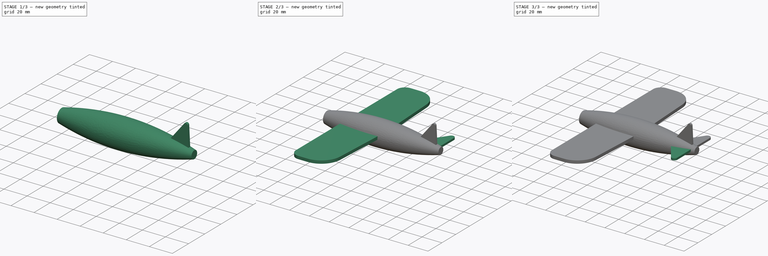
[diagram: build sequence overview — one tinted view per stage of 3, left to right]
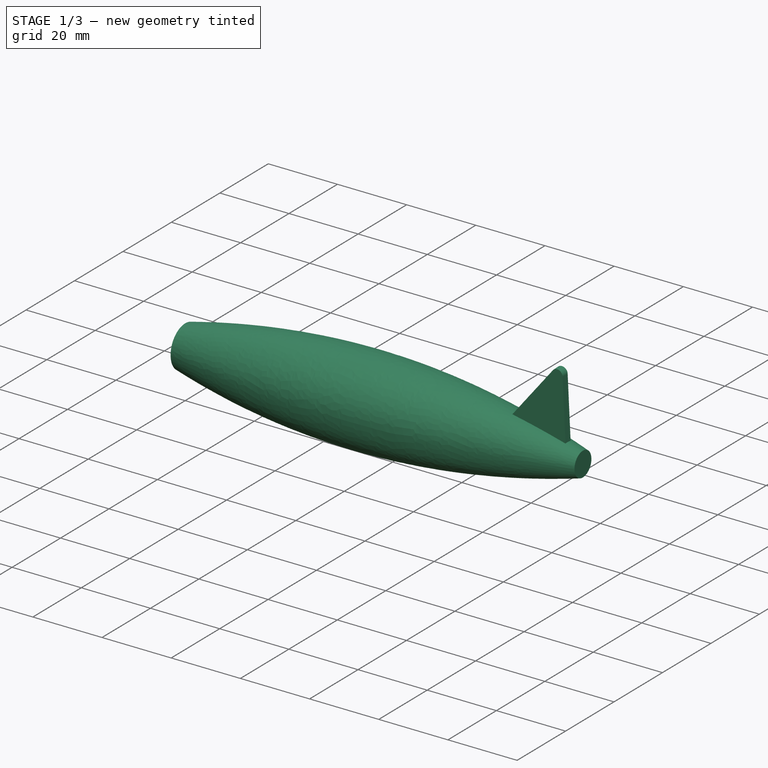
[diagram: stage 1 of 3 — iso view after this stage's code; geometry added in this stage tinted green]
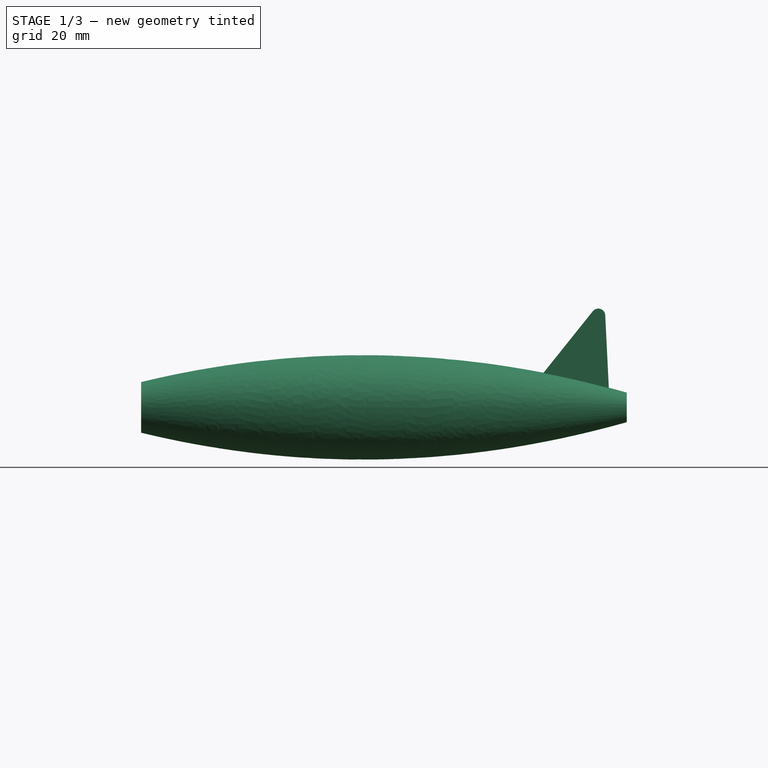
[diagram: stage 1 of 3 — front view after this stage's code; geometry added in this stage tinted green]
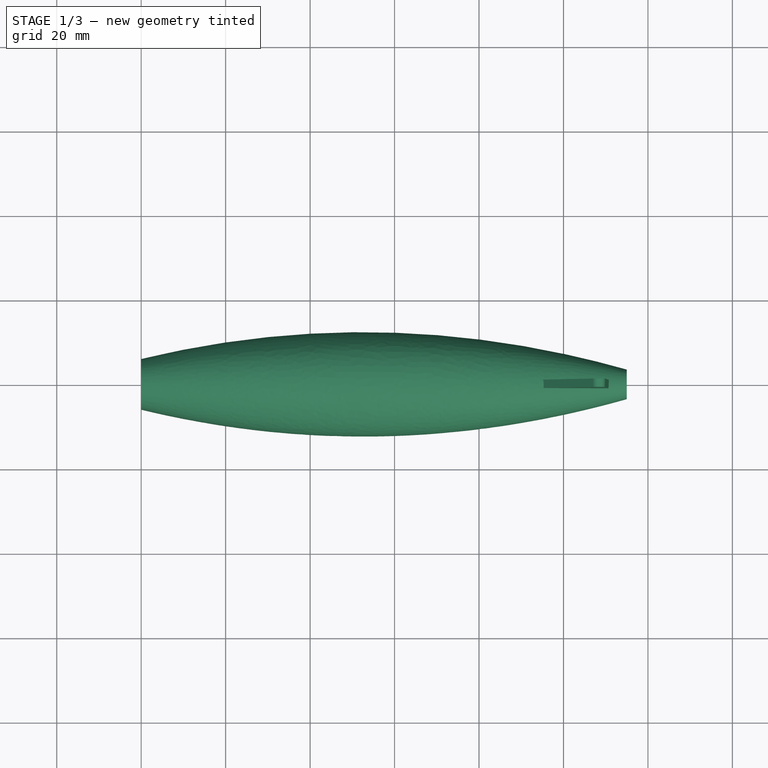
[diagram: stage 1 of 3 — top view after this stage's code; geometry added in this stage tinted green]
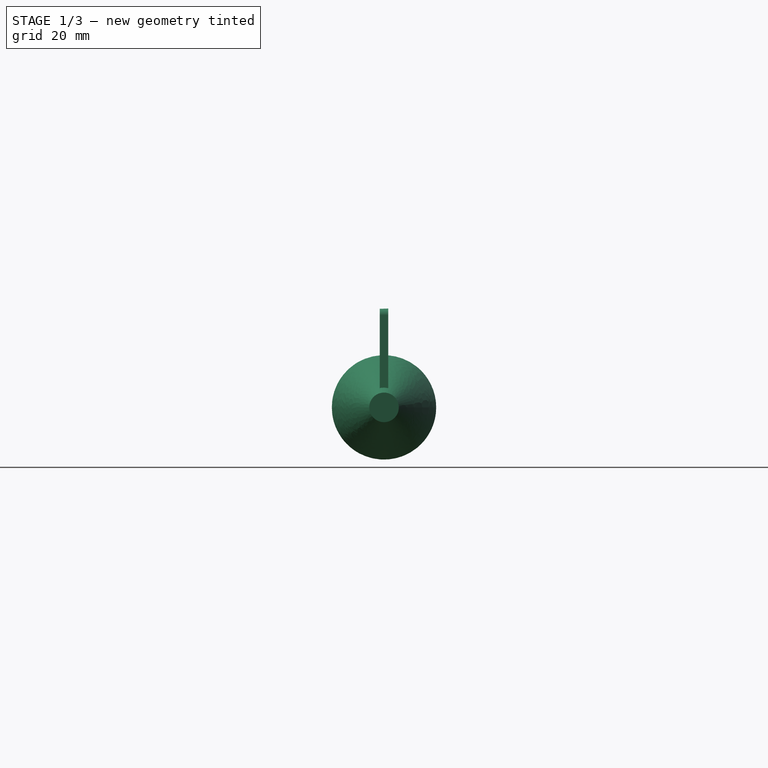
[diagram: stage 1 of 3 — right view after this stage's code; geometry added in this stage tinted green]
FCSTD DOCUMENT  (FreeCAD 0.20R27518 (Git))
Label: toy-plane-body
License: Creative Commons Attribution
LicenseURL: http://creativecommons.org/licenses/by/4.0/
objects: Sketcher::SketchObject×7, PartDesign::Plane×2, PartDesign::Pad×2, PartDesign::Mirrored×2, PartDesign::AdditiveLoft×1, PartDesign::Pocket×1, Part::Extrusion×1, PartDesign::Body×1
note: 21 computed .brp shape members not serialized (recipe doc carries the construction recipe); baked Part::Feature solids carry a one-line shape summary decoded from their .brp

FEATURE [Sketcher::SketchObject] Sketch
  FullyConstrained = true
  MapMode = 5
  Placement = pos=(0,0,0) rot=(0.57735,0.57735,0.57735;2.0944rad)
  Support = -> [YZ_Plane]
  sketch-geometry (1):
    g0: Circle CenterX=0 CenterY=0 CenterZ=0 NormalX=0 NormalY=0 NormalZ=1 AngleXU=0 Radius=6
  constraints (2):
    c: Coincident(g0,g-1)
    c: Diameter(g0) = 12
FEATURE [PartDesign::Plane] DatumPlane
  AttachmentOffset = pos=(0,0,40) rot=(0,0,1;0rad)
  Length = 180.028
  MapMode = 2
  Placement = pos=(40,-4.4e-15,4.4e-15) rot=(0.57735,0.57735,0.57735;2.0944rad)
  ResizeMode = 0
  Support = -> [Sketch]
  Width = 68.0015
FEATURE [Sketcher::SketchObject] Sketch001
  FullyConstrained = true
  MapMode = 5
  Placement = pos=(40,-4.4e-15,4.4e-15) rot=(0.57735,0.57735,0.57735;2.0944rad)
  Support = -> [DatumPlane]
  sketch-geometry (1):
    g0: Circle CenterX=0 CenterY=0 CenterZ=0 NormalX=0 NormalY=0 NormalZ=1 AngleXU=0 Radius=12
  constraints (2):
    c: Coincident(g0,g-1)
    c: Diameter(g0) = 24
FEATURE [PartDesign::Plane] DatumPlane001
  AttachmentOffset = pos=(0,0,75) rot=(0,0,1;0rad)
  Length = 180.028
  MapMode = 2
  Placement = pos=(115,-4.4e-15,4.4e-15) rot=(0.57735,0.57735,0.57735;2.0944rad)
  ResizeMode = 0
  Support = -> [Sketch001]
  Width = 68.0015
FEATURE [Sketcher::SketchObject] Sketch002
  FullyConstrained = true
  MapMode = 5
  Placement = pos=(115,-4.4e-15,4.4e-15) rot=(0.57735,0.57735,0.57735;2.0944rad)
  Support = -> [DatumPlane001]
  sketch-geometry (1):
    g0: Circle CenterX=0 CenterY=0 CenterZ=0 NormalX=0 NormalY=0 NormalZ=1 AngleXU=0 Radius=3.5
  constraints (2):
    c: Coincident(g0,g-1)
    c: Diameter(g0) = 7
FEATURE [PartDesign::AdditiveLoft] AdditiveLoft
  Closed = true
  Placement = pos=(0,0,0) rot=(0.57735,0.57735,0.57735;2.0944rad)
  Profile = -> Sketch
  Ruled = false
  Sections = -> [Sketch001,Sketch002]
FEATURE [Sketcher::SketchObject] Sketch006
  FullyConstrained = false
  MapMode = 5
  Placement = pos=(0,0,0) rot=(1,0,0;1.5708rad)
  Support = -> [XZ_Plane]
  sketch-geometry (5):
    g0: LineSegment StartX=88.7493 StartY=-3.6e-15 StartZ=0 EndX=110.928 EndY=-3.6e-15 EndZ=0
    g1: LineSegment StartX=110.928 StartY=-3.6e-15 StartZ=0 EndX=109.854 EndY=21.8437 EndZ=0
    g2: LineSegment StartX=106.985 StartY=22.7724 StartZ=0 EndX=88.7493 EndY=-3.6e-15 EndZ=0
    g3: ArcOfCircle CenterX=108.243 CenterY=21.7645 CenterZ=0 NormalX=0 NormalY=0 NormalZ=1 AngleXU=0 Radius=1.61251 StartAngle=0.0491411 EndAngle=2.46638
    g4: GeomPoint X=109.645 Y=26.0945 Z=0
  constraints (7):
    c: Horizontal(g0)
    c: Coincident(g2,g0)
    c: Coincident(g1,g0)
    c: PointOnObject(g4,g2)
    c: PointOnObject(g4,g1)
    c: Tangent(g2,g3) = -1.5708
    c: Tangent(g1,g3) = -1.5708
FEATURE [Part::Extrusion] Extrude
  Base = -> Sketch006
  Dir = (0,1,0)
  DirMode = 0
  FaceMakerClass = Part::FaceMakerBullseye
  LengthFwd = 2
  LengthRev = 0
  Solid = true
  Symmetric = true
  TaperAngle = 2
  TaperAngleRev = -2
FEATURE [PartDesign::Body] Body
  Group = -> [Sketch,DatumPlane,Sketch001,DatumPlane001,Sketch002,AdditiveLoft,Sketch003,Pad,Mirrored,Sketch004,Pad001,Mirrored001,Sketch005,Pocket,Sketch006,Extrude]
  Origin = -> Origin
  Tip = -> Pocket
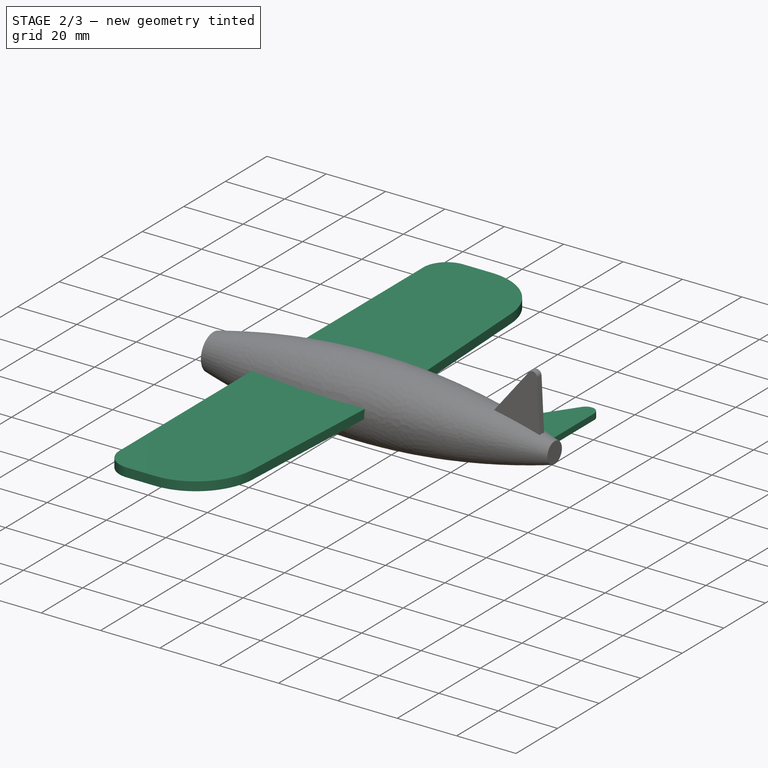
[diagram: stage 2 of 3 — iso view after this stage's code; geometry added in this stage tinted green]
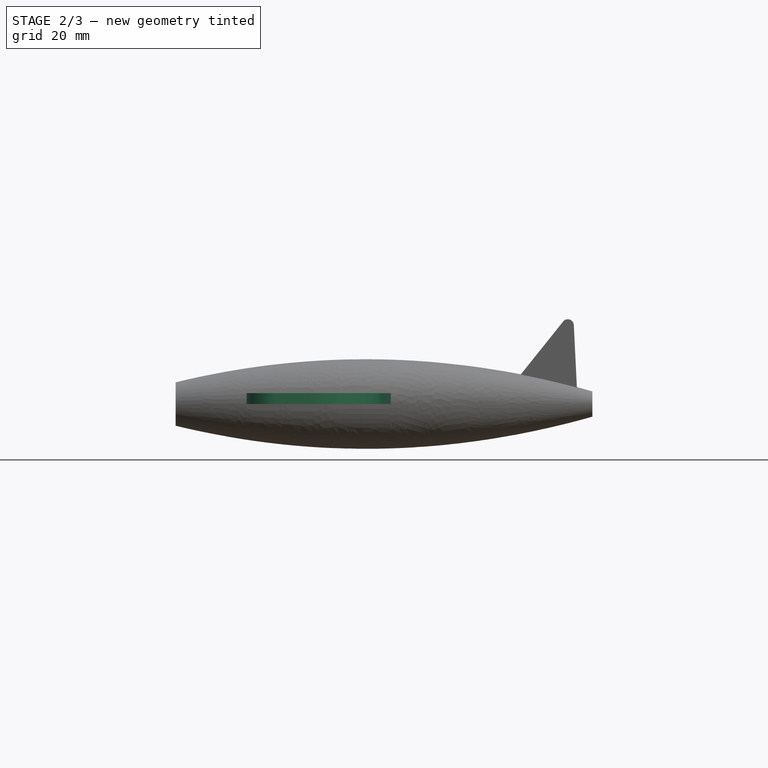
[diagram: stage 2 of 3 — front view after this stage's code; geometry added in this stage tinted green]
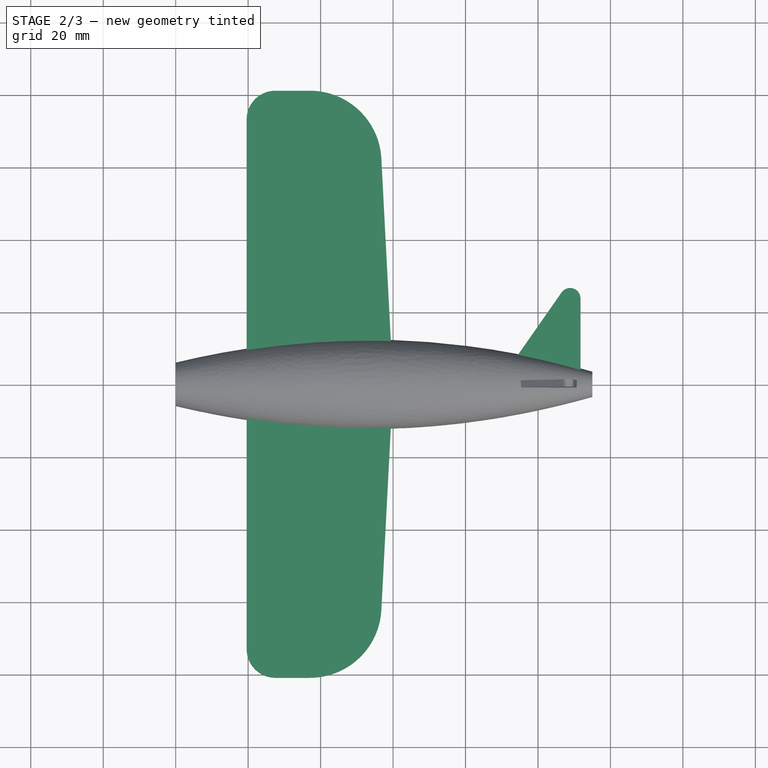
[diagram: stage 2 of 3 — top view after this stage's code; geometry added in this stage tinted green]
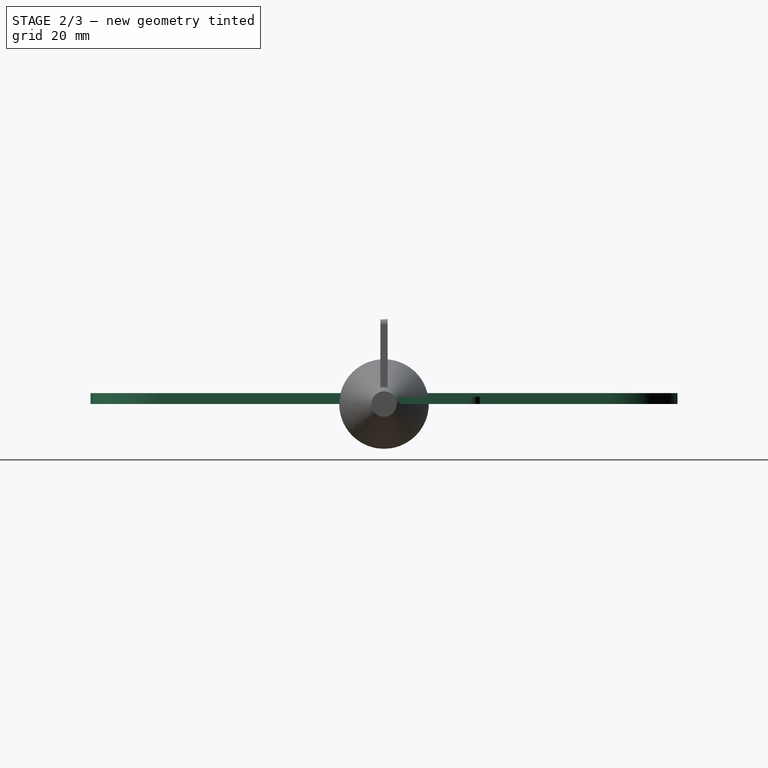
[diagram: stage 2 of 3 — right view after this stage's code; geometry added in this stage tinted green]
FEATURE [Sketcher::SketchObject] Sketch003
  ExternalGeometry = -> [AdditiveLoft]
  FullyConstrained = false
  MapMode = 5
  Support = -> [XY_Plane]
  sketch-geometry (10):
    g0: LineSegment StartX=0 StartY=0 StartZ=0 EndX=126.608 EndY=0 EndZ=0
    g1: LineSegment StartX=19.5847 StartY=0 StartZ=0 EndX=19.5847 EndY=51.0853 EndZ=0
    g2: LineSegment StartX=19.5847 StartY=0 StartZ=0 EndX=19.5847 EndY=73.0715 EndZ=0
    g3: LineSegment StartX=27.5263 StartY=81.0131 StartZ=0 EndX=37.0289 EndY=81.0131 EndZ=0
    g4: LineSegment StartX=56.7763 StartY=62.2633 StartZ=0 EndX=60.0052 EndY=0 EndZ=0
    g5: ArcOfCircle CenterX=27.5263 CenterY=73.0715 CenterZ=0 NormalX=0 NormalY=0 NormalZ=1 AngleXU=0 Radius=7.94163 StartAngle=1.5708 EndAngle=3.14159
    g6: GeomPoint X=19.5847 Y=81.0131 Z=0
    g7: ArcOfCircle CenterX=37.0289 CenterY=61.2392 CenterZ=0 NormalX=0 NormalY=0 NormalZ=1 AngleXU=0 Radius=19.7739 StartAngle=0.0518122 EndAngle=1.5708
    g8: GeomPoint X=55.8039 Y=81.0131 Z=0
    g9: LineSegment StartX=19.5847 StartY=0 StartZ=0 EndX=60.0052 EndY=0 EndZ=0
  constraints (18):
    c: Coincident(g0,g-1)
    c: PointOnObject(g0,g-1)
    c: Vertical(g1)
    c: PointOnObject(g1,g0)
    c: Coincident(g2,g1)
    c: Vertical(g2)
    c: Horizontal(g3)
    c: PointOnObject(g4,g0)
    c: PointOnObject(g6,g2)
    c: PointOnObject(g6,g3)
    c: Tangent(g2,g5) = 1.5708
    c: Tangent(g3,g5) = 1.5708
    c: PointOnObject(g8,g3)
    c: PointOnObject(g8,g4)
    c: Tangent(g3,g7) = 1.5708
    c: Tangent(g4,g7) = 1.5708
    c: Coincident(g9,g2)
    c: Coincident(g9,g4)
FEATURE [PartDesign::Pad] Pad
  BaseFeature = -> AdditiveLoft
  Direction = (0,0,1)
  Length = 3
  Length2 = 10
  Placement = pos=(0,0,0) rot=(0.57735,0.57735,0.57735;2.0944rad)
  Profile = -> Sketch003
  ReferenceAxis = -> Sketch003 [N_Axis]
  Type = 0
FEATURE [PartDesign::Mirrored] Mirrored
  BaseFeature = -> Pad
  MirrorPlane = -> XZ_Plane
  Originals = -> [Pad]
  Overlap = 0
  Placement = pos=(0,0,0) rot=(0.57735,0.57735,0.57735;2.0944rad)
FEATURE [Sketcher::SketchObject] Sketch004
  FullyConstrained = false
  sketch-geometry (4):
    g0: LineSegment StartX=88.8164 StartY=0 StartZ=0 EndX=106.509 EndY=25.3462 EndZ=0
    g1: LineSegment StartX=111.724 StartY=23.7058 StartZ=0 EndX=111.724 EndY=0 EndZ=0
    g2: LineSegment StartX=88.8164 StartY=0 StartZ=0 EndX=111.724 EndY=0 EndZ=0
    g3: ArcOfCircle CenterX=108.859 CenterY=23.7058 CenterZ=0 NormalX=0 NormalY=0 NormalZ=1 AngleXU=0 Radius=2.86589 StartAngle=0 EndAngle=2.5322
  constraints (5):
    c: Vertical(g1)
    c: Coincident(g2,g1)
    c: Coincident(g2,g0)
    c: Tangent(g0,g3) = 1.5708
    c: Tangent(g1,g3) = 1.5708
FEATURE [PartDesign::Pad] Pad001
  BaseFeature = -> Mirrored
  Direction = (0,0,1)
  Length = 2
  Length2 = 10
  Placement = pos=(0,0,0) rot=(0.57735,0.57735,0.57735;2.0944rad)
  Profile = -> Sketch004
  ReferenceAxis = -> Sketch004 [N_Axis]
  Type = 0
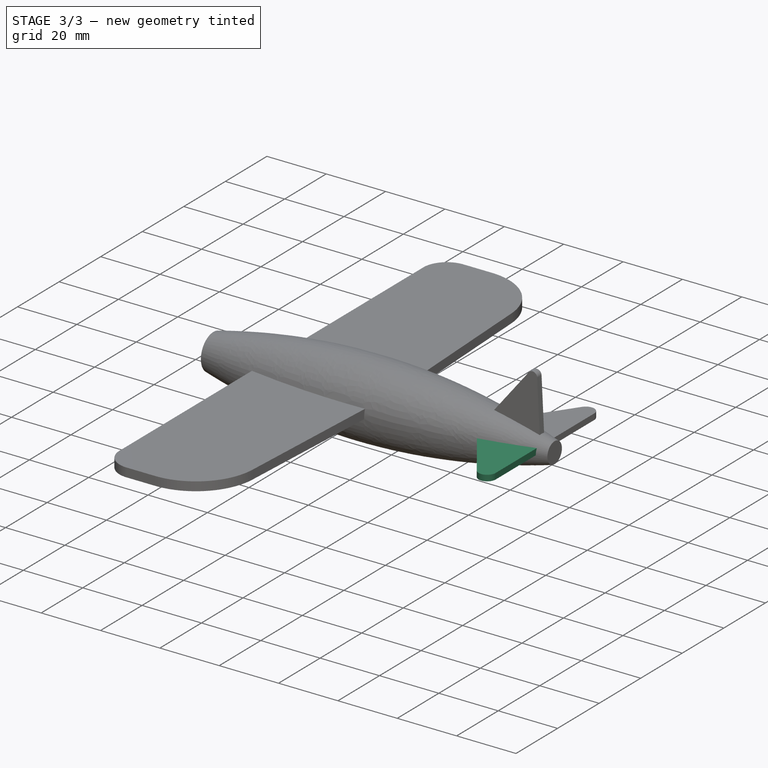
[diagram: stage 3 of 3 — iso view after this stage's code; geometry added in this stage tinted green]
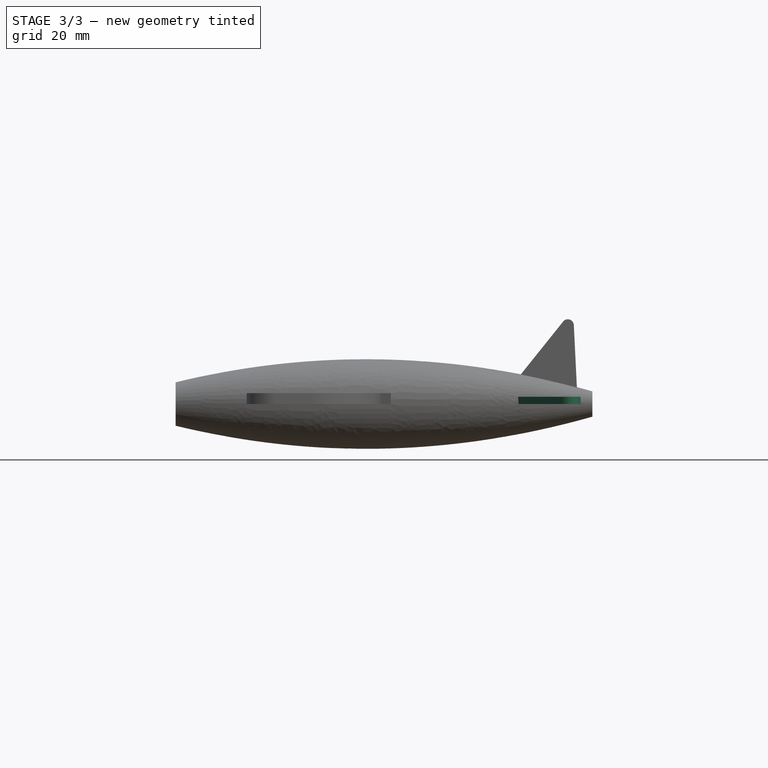
[diagram: stage 3 of 3 — front view after this stage's code; geometry added in this stage tinted green]
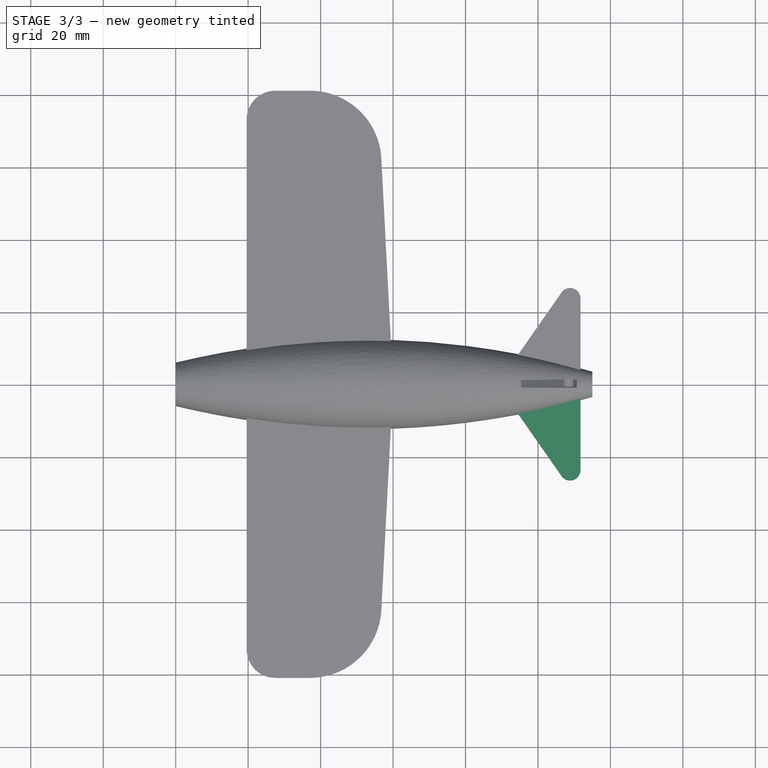
[diagram: stage 3 of 3 — top view after this stage's code; geometry added in this stage tinted green]
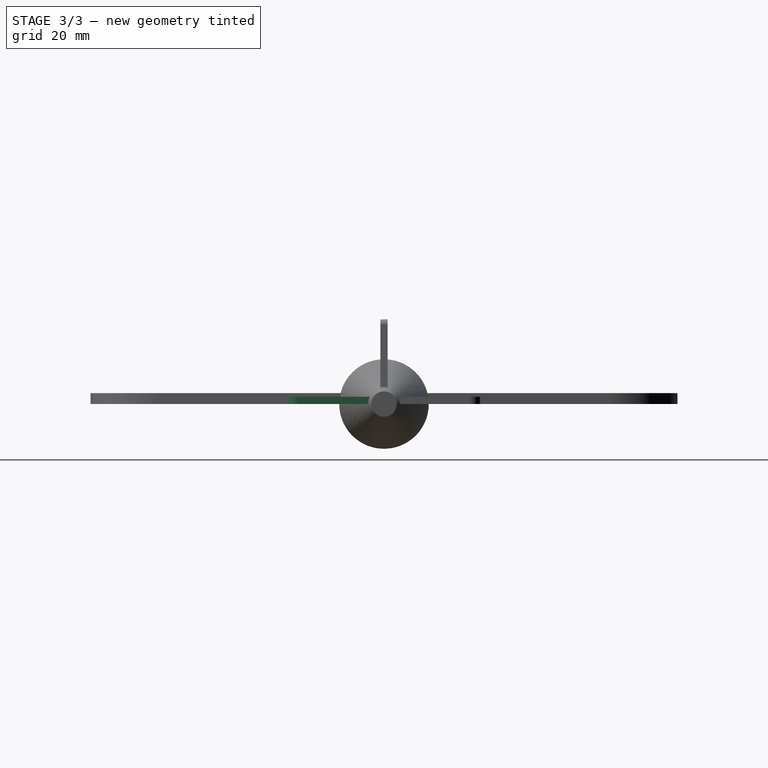
[diagram: stage 3 of 3 — right view after this stage's code; geometry added in this stage tinted green]
FEATURE [PartDesign::Mirrored] Mirrored001
  BaseFeature = -> Pad001
  MirrorPlane = -> XZ_Plane
  Originals = -> [Pad001]
  Overlap = 0
  Placement = pos=(0,0,0) rot=(0.57735,0.57735,0.57735;2.0944rad)
FEATURE [Sketcher::SketchObject] Sketch005
  FullyConstrained = true
  MapMode = 5
  Placement = pos=(0,0,0) rot=(-0.57735,-0.57735,0.57735;2.0944rad)
  Support = -> [Mirrored001]
  sketch-geometry (1):
    g0: Circle CenterX=0 CenterY=0 CenterZ=0 NormalX=0 NormalY=0 NormalZ=1 AngleXU=0 Radius=1.6
  constraints (2):
    c: Coincident(g0,g-1)
    c: Diameter(g0) = 3.2
FEATURE [PartDesign::Pocket] Pocket
  BaseFeature = -> Mirrored001
  Direction = (1,-8e-16,7e-16)
  Length = 15
  Length2 = 5
  Placement = pos=(0,0,0) rot=(0.57735,0.57735,0.57735;2.0944rad)
  Profile = -> Sketch005
  ReferenceAxis = -> Sketch005 [N_Axis]
  Type = 0
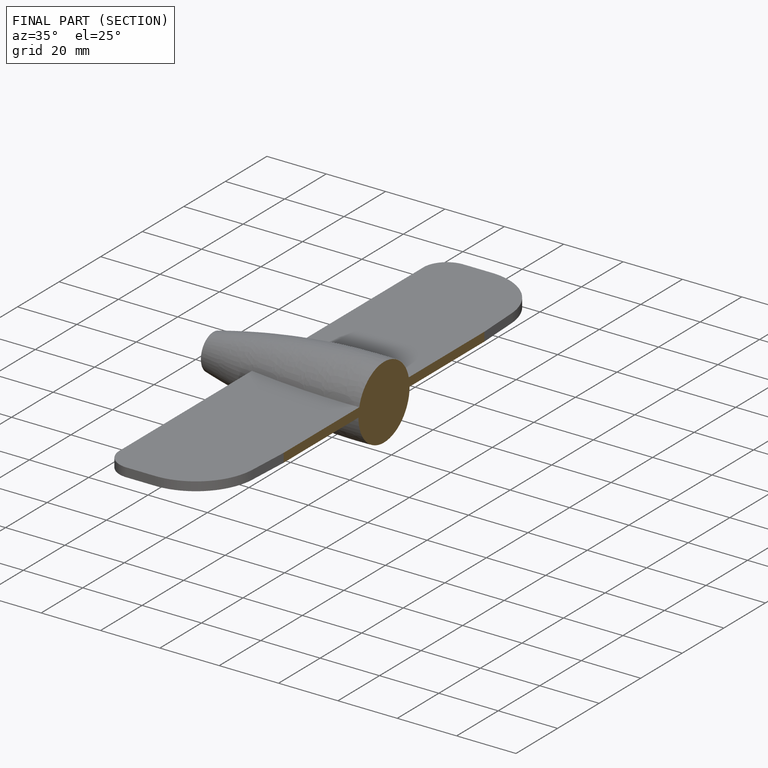
[diagram: finished part — half-section view (interior)]
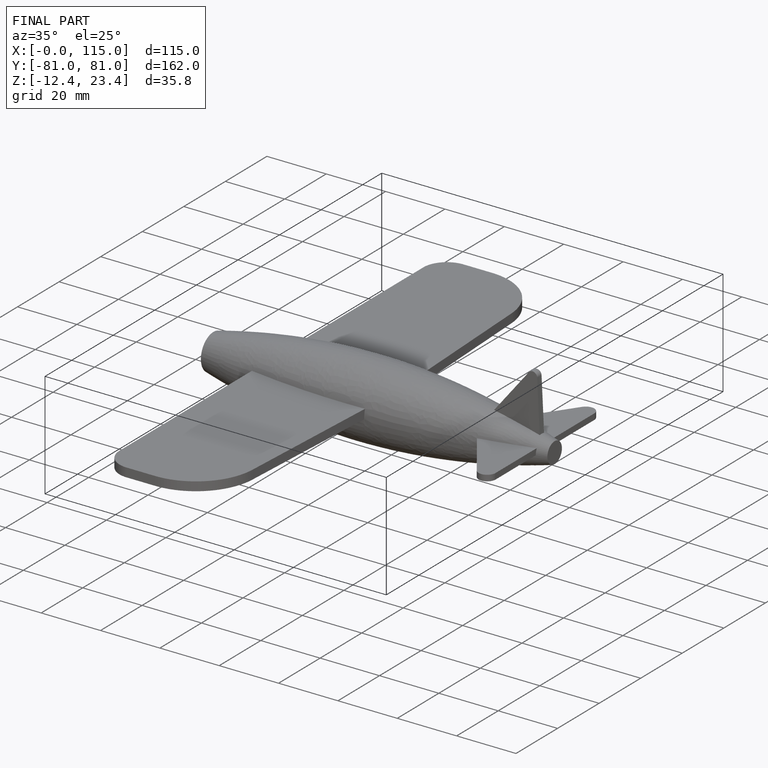
[diagram: finished part — iso view with bounding-box wireframe]
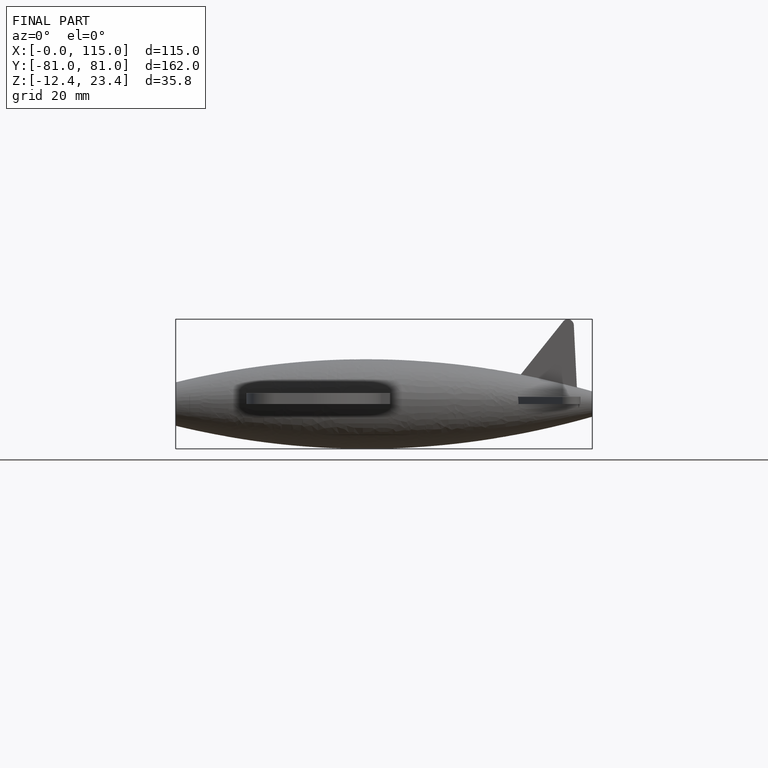
[diagram: finished part — front view with bounding-box wireframe]
